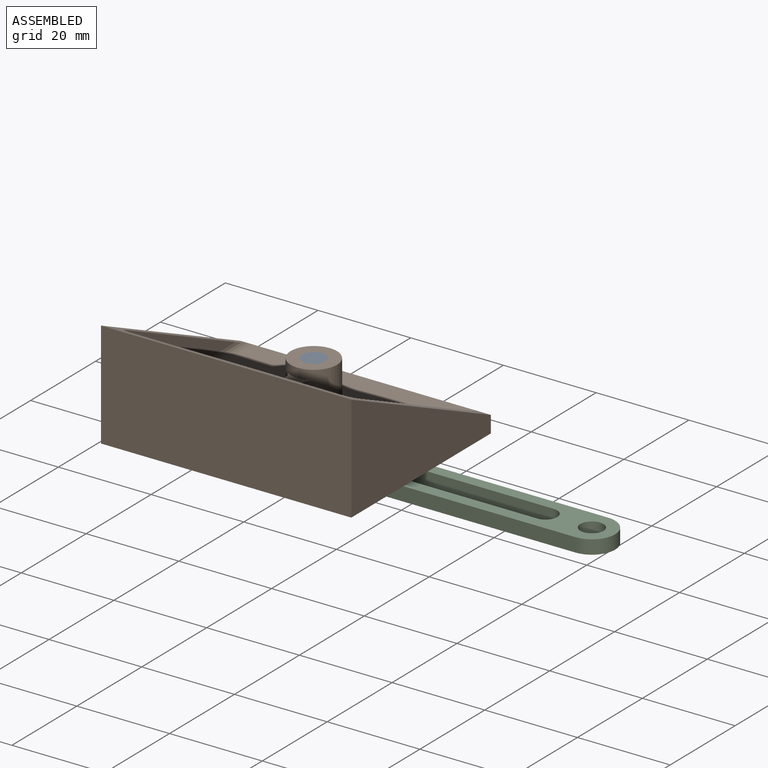
[diagram: assembled view]
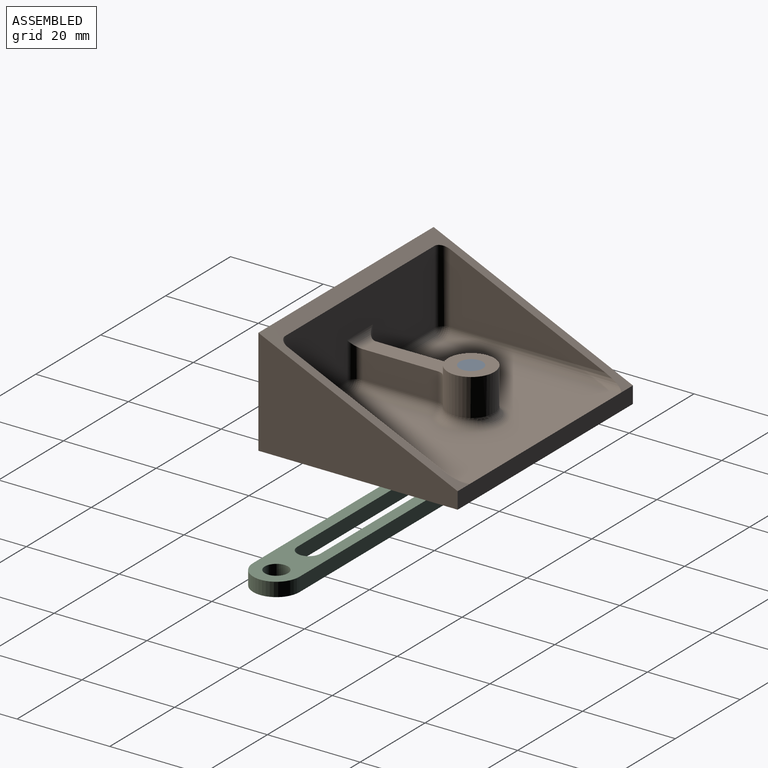
[diagram: assembled view, second angle]
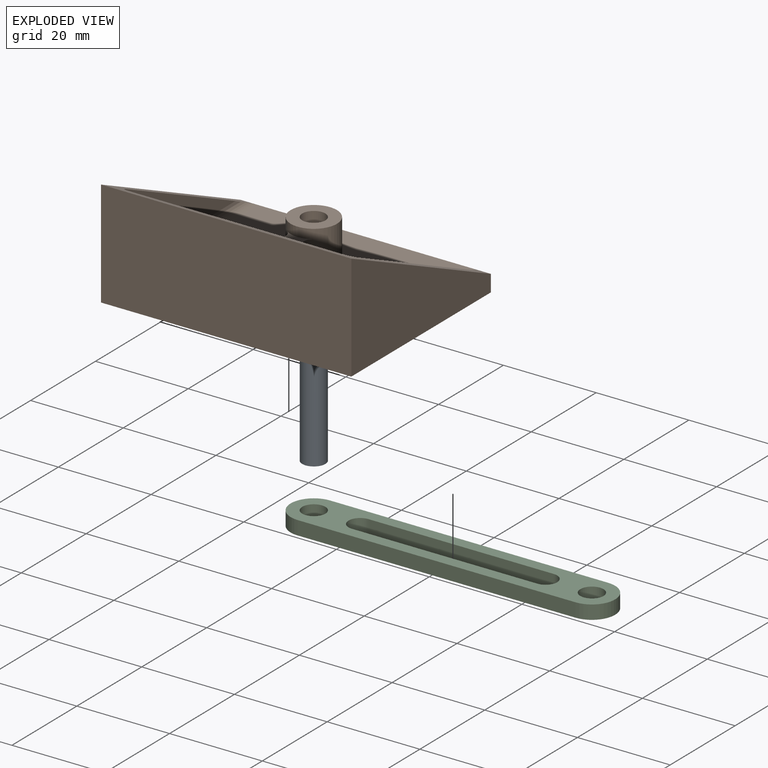
[diagram: exploded view]
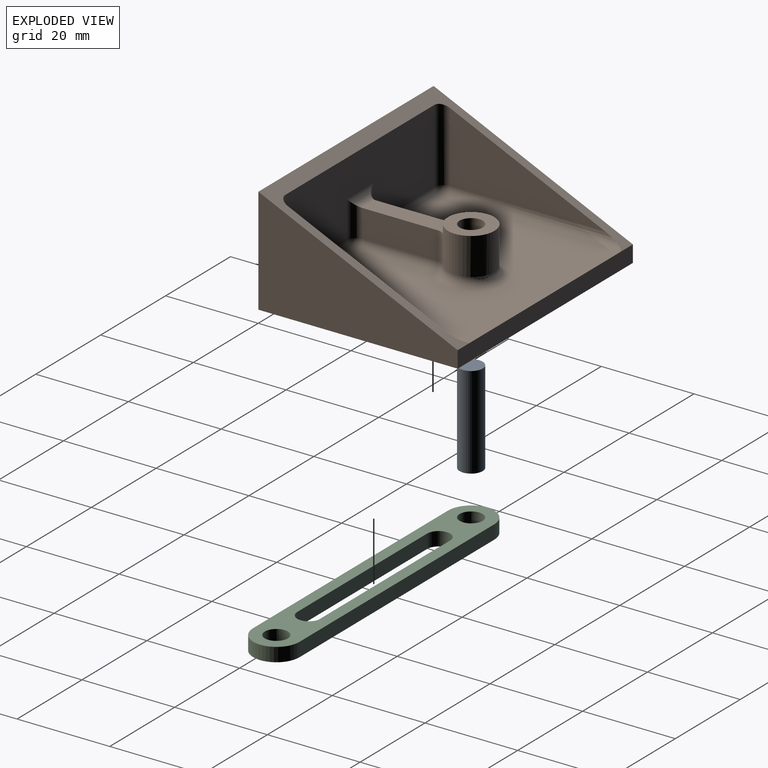
[diagram: exploded view, second angle]
ASSEMBLY  parts=3 mates=2
PART A: 3 faces, bbox 5x20x5 mm
  f0: cylinder r=2.5mm len=20mm, axis (0,1,0), area 314.2mm2, adj f1,f2
  f1: plane 5x5mm, normal (0,-1,0), area 19.6mm2, adj f0
  f2: plane 5x5mm, normal (0,1,0), area 19.6mm2, adj f0
PART B: 36 faces, bbox 54x23x43 mm
  f0: plane 54x43mm, normal (0,-0.91,0.41), area 359.3mm2, adj f1,f3,f4,f5,f6,f7,f8,f16
  f1: plane 54x23mm, normal (0,0,-1), area 1242mm2, adj f0,f2,f4,f5
  f2: plane 54x43mm, normal (0,1,0), area 2302.4mm2, adj f1,f3,f4,f5,f15
  f3: plane 54x3.6mm, normal (0,0,1), area 194.4mm2, adj f0,f2,f4,f5,f9
  f4: plane 43x23mm, normal (1,0,0), area 571.9mm2, adj f0,f1,f2,f3
  f5: plane 43x23mm, normal (-1,0,0), area 571.9mm2, adj f0,f1,f2,f3
  f6: plane 33.57x15.14mm, normal (1,0,0), area 254.2mm2, adj f0,f18,f19
  f7: plane 33.57x15.14mm, normal (-1,0,0), area 254.2mm2, adj f0,f16,f17
  f8: plane 46x16.05mm, normal (0,0,1), area 674.1mm2, adj f0,f17,f18,f21,f23,f24,f25,f26
  f9: plane 46x38mm, normal (0,-1,0), area 1470.8mm2, adj f3,f16,f19,f23,f26,f29,f32,f35
  f10: plane 16.26x6mm, normal (1,0,0), area 97.5mm2, adj f12,f24,f29,f30
  f11: plane 16.26x6mm, normal (-1,0,0), area 97.5mm2, adj f12,f25,f31,f32
  f12: plane 17.9x5.71mm, normal (0,-1,0), area 68.9mm2, adj f10,f11,f13,f21,f30,f31
  f13: cylinder r=5mm len=10mm, axis (0,1,0), area 214.8mm2, adj f12,f14,f30,f31,f35
  f14: plane 10x10mm, normal (0,-1,0), area 58.9mm2, adj f13,f15
  f15: cylinder r=2.5mm len=13.6mm, axis (0,1,0), area 213.6mm2, adj f2,f14
  f16: cylinder r=2mm len=38mm, axis (0,0,-1), area 114.3mm2, adj f0,f7,f9,f20
  f17: cylinder r=2mm len=16.05mm, axis (0,1,0), area 49.4mm2, adj f0,f7,f8,f20
  f18: cylinder r=2mm len=16.05mm, axis (0,-1,0), area 49.4mm2, adj f0,f6,f8,f22
  f19: cylinder r=2mm len=38mm, axis (0,0,1), area 114.3mm2, adj f0,f6,f9,f22
  f20: sphere r=2mm, area 6.3mm2, adj f16,f17,f23
  f21: cylinder r=2mm len=8mm, axis (-1,0,0), area 17.1mm2, adj f8,f12,f24,f25
  f22: sphere r=2mm, area 6.3mm2, adj f18,f19,f26
  f23: cylinder r=2mm len=19mm, axis (-1,0,0), area 59.7mm2, adj f8,f9,f20,f27
  f24: cylinder r=2mm len=8mm, axis (0,1,0), area 21.1mm2, adj f8,f10,f21,f27
  f25: cylinder r=2mm len=8mm, axis (0,-1,0), area 21.1mm2, adj f8,f11,f21,f28
  f26: cylinder r=2mm len=19mm, axis (-1,0,0), area 59.7mm2, adj f8,f9,f22,f28
  f27: sphere r=2mm, area 6.3mm2, adj f23,f24,f29
  f28: sphere r=2mm, area 6.3mm2, adj f25,f26,f32
  f29: cylinder r=2mm len=16.26mm, axis (0,0,1), area 51.1mm2, adj f9,f10,f27,f33
  f30: cylinder r=2mm len=6mm, axis (0,1,0), area 11.6mm2, adj f10,f12,f13,f33
  f31: cylinder r=2mm len=6mm, axis (0,1,0), area 11.6mm2, adj f11,f12,f13,f34
  f32: cylinder r=2mm len=16.26mm, axis (0,0,-1), area 51.1mm2, adj f9,f11,f28,f34
  f33: sphere r=2mm, area 3.9mm2, adj f29,f30,f35
  f34: sphere r=2mm, area 3.9mm2, adj f31,f32,f35
  f35: torus R=7mm, axis (0,-1,0), area 91.2mm2, adj f9,f13,f33,f34
PART C: 12 faces, bbox 70x10x3 mm
  f0: cylinder r=5mm len=10mm, axis (0,0,-1), area 47.1mm2, adj f1,f9,f10,f11
  f1: plane 60x3mm, normal (0,-1,0), area 180mm2, adj f0,f2,f10,f11
  f2: cylinder r=5mm len=10mm, axis (0,0,-1), area 47.1mm2, adj f1,f9,f10,f11
  f3: cylinder r=2.5mm len=5mm, axis (0,0,-1), area 23.6mm2, adj f4,f8,f10,f11
  f4: plane 40x3mm, normal (0,-1,0), area 120mm2, adj f3,f5,f10,f11
  f5: cylinder r=2.5mm len=5mm, axis (0,0,-1), area 23.6mm2, adj f4,f8,f10,f11
  f6: cylinder r=2.5mm len=5mm, axis (0,0,-1), area 47.1mm2, adj f10,f11
  f7: cylinder r=2.5mm len=5mm, axis (0,0,-1), area 47.1mm2, adj f10,f11
  f8: plane 40x3mm, normal (0,1,0), area 120mm2, adj f3,f5,f10,f11
  f9: plane 60x3mm, normal (0,1,0), area 180mm2, adj f0,f2,f10,f11
  f10: plane 70x10mm, normal (0,0,1), area 419.6mm2, adj f0,f1,f2,f3,f4,f5,f6,f7
  f11: plane 70x10mm, normal (0,0,-1), area 419.6mm2, adj f0,f1,f2,f3,f4,f5,f6,f7
PLACE A rot(axis=(-1,0,0),90deg) t=(-47.01,43.04,-20.41)mm
PLACE B rot(axis=(-1,0,0),90deg) t=(-74.01,16.04,8.99)mm
PLACE C t=(-47.01,43.04,-20.41)mm
MATE revolute A.f0 <-> B.f13  axis (0,0,1) through (-47.01,43.04,-0.41)mm
MATE revolute A.f0 <-> C.f6  axis (0,0,-1) through (-47.01,43.04,-20.41)mm
